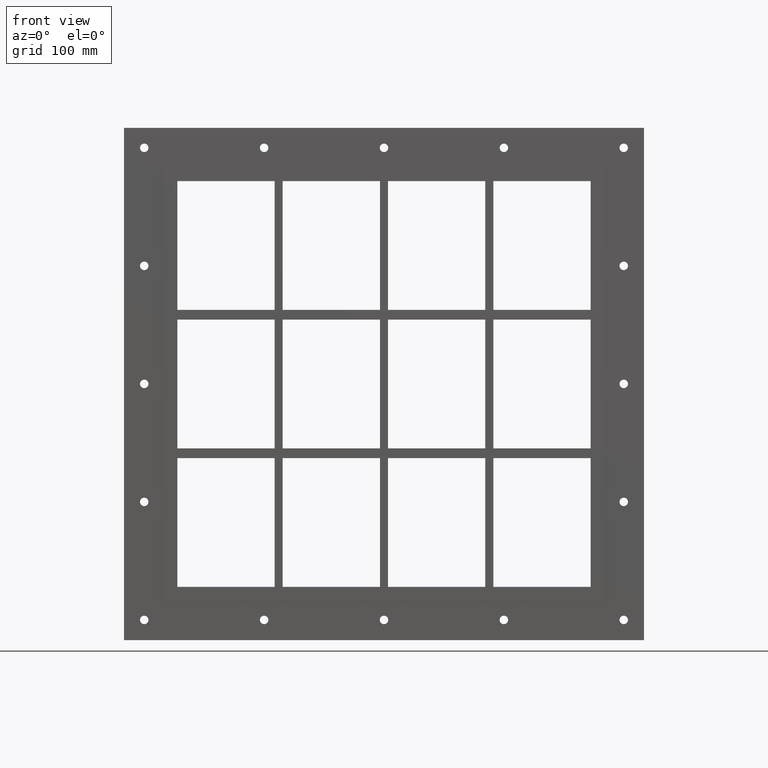
[diagram: clean part render]
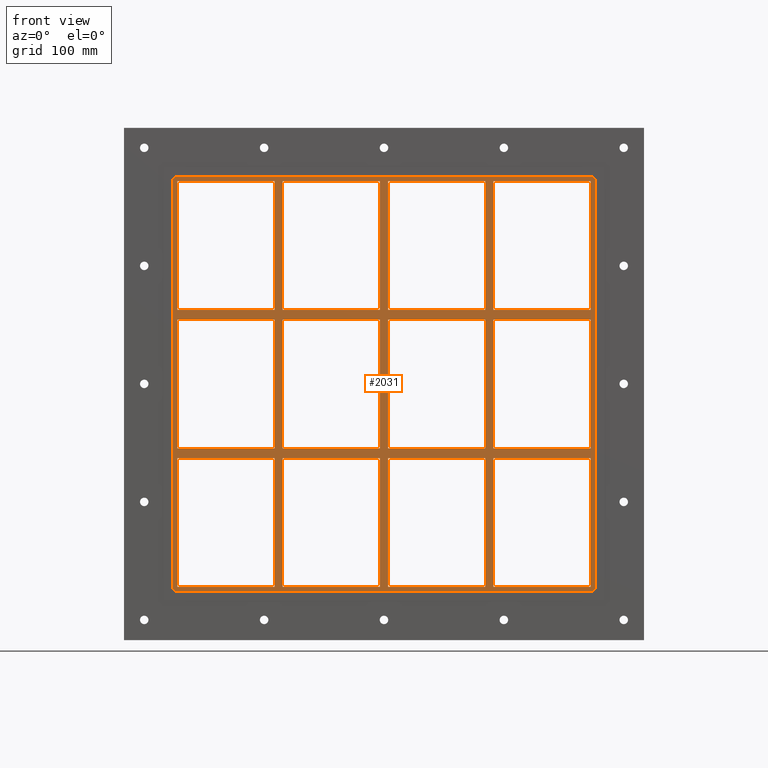
[diagram: same view with one face highlighted and labeled with its STEP entity id]
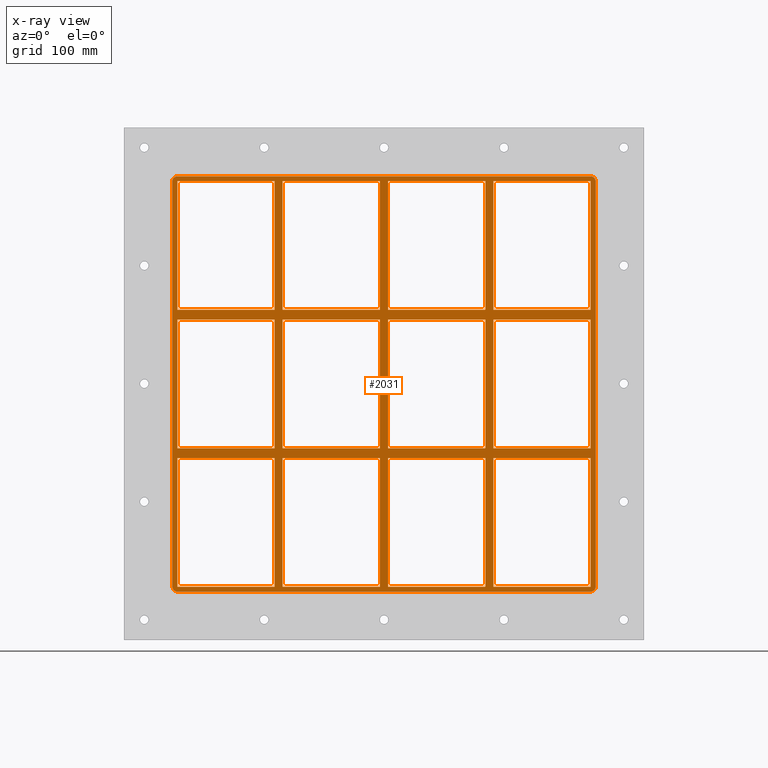
[diagram: x-ray of the same camera — body ghosted, the highlighted face saturated]
A machine part, front view. The second image highlights one B-rep face of the part: STEP entity #2031.
The next image is the same camera in x-ray: the body ghosted, the highlighted face saturated — about 0% of this face is hidden behind the body in this view.
In plain terms, the highlighted planar face has unit normal (0, 1, 0).
Its self-contained STEP definition (entity closure, byte-faithful):
#521=CARTESIAN_POINT('',(-135.50000000000213,-3.0,79.749999999989683));
#522=VERTEX_POINT('',#521);
#531=CARTESIAN_POINT('',(-256.00000000000045,-3.0,79.749999999989683));
#532=VERTEX_POINT('',#531);
#533=CARTESIAN_POINT('',(-135.5000000000021,-3.0,79.749999999989711));
#534=DIRECTION('',(-1.0,0.0,0.0));
#535=VECTOR('',#534,120.49999999999835);
#536=LINE('',#533,#535);
#537=EDGE_CURVE('',#522,#532,#536,.T.);
#561=CARTESIAN_POINT('',(-5.000000000002132,-3.0,79.749999999989754));
#562=VERTEX_POINT('',#561);
#571=CARTESIAN_POINT('',(-125.49999999999272,-3.0,79.749999999989711));
#572=VERTEX_POINT('',#571);
#573=CARTESIAN_POINT('',(-5.00000000000216,-3.0,79.749999999989754));
#574=DIRECTION('',(-1.0,0.0,0.0));
#575=VECTOR('',#574,120.49999999999056);
#576=LINE('',#573,#575);
#577=EDGE_CURVE('',#562,#572,#576,.T.);
#603=CARTESIAN_POINT('',(135.50000000000728,-3.0,79.749999999989797));
#604=VERTEX_POINT('',#603);
#619=CARTESIAN_POINT('',(256.00000000000364,-3.0,79.749999999989839));
#620=VERTEX_POINT('',#619);
#627=CARTESIAN_POINT('',(256.00000000000364,-3.0,79.749999999989839));
#628=DIRECTION('',(-1.0,0.0,0.0));
#629=VECTOR('',#628,120.49999999999636);
#630=LINE('',#627,#629);
#631=EDGE_CURVE('',#620,#604,#630,.T.);
#641=CARTESIAN_POINT('',(125.4999999999979,-3.0,79.749999999989797));
#642=VERTEX_POINT('',#641);
#651=CARTESIAN_POINT('',(5.000000000007283,-3.0,79.749999999989754));
#652=VERTEX_POINT('',#651);
#653=CARTESIAN_POINT('',(125.4999999999979,-3.0,79.749999999989797));
#654=DIRECTION('',(-1.0,0.0,0.0));
#655=VECTOR('',#654,120.49999999999062);
#656=LINE('',#653,#655);
#657=EDGE_CURVE('',#642,#652,#656,.T.);
#683=CARTESIAN_POINT('',(-135.50000000000213,-3.0,91.750000000000085));
#684=VERTEX_POINT('',#683);
#699=CARTESIAN_POINT('',(-256.00000000000045,-3.0,91.750000000000085));
#700=VERTEX_POINT('',#699);
#707=CARTESIAN_POINT('',(-256.00000000000045,-3.0,91.750000000000085));
#708=DIRECTION('',(1.0,0.0,0.0));
#709=VECTOR('',#708,120.49999999999832);
#710=LINE('',#707,#709);
#711=EDGE_CURVE('',#700,#684,#710,.T.);
#721=CARTESIAN_POINT('',(135.50000000000728,-3.0,91.750000000000085));
#722=VERTEX_POINT('',#721);
#731=CARTESIAN_POINT('',(256.00000000000017,-3.0,91.750000000000085));
#732=VERTEX_POINT('',#731);
#733=CARTESIAN_POINT('',(135.50000000000728,-3.0,91.750000000000085));
#734=DIRECTION('',(1.0,0.0,0.0));
#735=VECTOR('',#734,120.49999999999284);
#736=LINE('',#733,#735);
#737=EDGE_CURVE('',#722,#732,#736,.T.);
#763=CARTESIAN_POINT('',(-5.000000000002132,-3.0,91.750000000000085));
#764=VERTEX_POINT('',#763);
#779=CARTESIAN_POINT('',(-125.49999999999272,-3.0,91.750000000000085));
#780=VERTEX_POINT('',#779);
#787=CARTESIAN_POINT('',(-125.49999999999272,-3.0,91.750000000000085));
#788=DIRECTION('',(1.0,0.0,0.0));
#789=VECTOR('',#788,120.49999999999056);
#790=LINE('',#787,#789);
#791=EDGE_CURVE('',#780,#764,#790,.T.);
#803=CARTESIAN_POINT('',(125.49999999999791,-3.0,91.750000000000085));
#804=VERTEX_POINT('',#803);
#819=CARTESIAN_POINT('',(5.000000000007283,-3.0,91.750000000000085));
#820=VERTEX_POINT('',#819);
#827=CARTESIAN_POINT('',(5.000000000007276,-3.0,91.750000000000085));
#828=DIRECTION('',(1.0,0.0,0.0));
#829=VECTOR('',#828,120.49999999999062);
#830=LINE('',#827,#829);
#831=EDGE_CURVE('',#820,#804,#830,.T.);
#850=CARTESIAN_POINT('',(-256.0,-3.0,251.24999999999997));
#851=VERTEX_POINT('',#850);
#858=CARTESIAN_POINT('',(-256.0,-3.0,91.750000000000099));
#859=DIRECTION('',(0.0,0.0,1.0));
#860=VECTOR('',#859,159.49999999999989);
#861=LINE('',#858,#860);
#862=EDGE_CURVE('',#700,#851,#861,.T.);
#881=CARTESIAN_POINT('',(256.00000000000017,-3.0,-79.749999999999943));
#882=VERTEX_POINT('',#881);
#889=CARTESIAN_POINT('',(256.0,-3.0,79.749999999989839));
#890=DIRECTION('',(0.0,0.0,-1.0));
#891=VECTOR('',#890,159.49999999998977);
#892=LINE('',#889,#891);
#893=EDGE_CURVE('',#620,#882,#892,.T.);
#904=CARTESIAN_POINT('',(256.0,-3.0,251.24999999999997));
#905=VERTEX_POINT('',#904);
#906=CARTESIAN_POINT('',(256.0,-3.0,251.24999999999997));
#907=DIRECTION('',(0.0,0.0,-1.0));
#908=VECTOR('',#907,159.49999999999989);
#909=LINE('',#906,#908);
#910=EDGE_CURVE('',#905,#732,#909,.T.);
#935=CARTESIAN_POINT('',(125.49999999999787,-3.0,251.24999999999997));
#936=VERTEX_POINT('',#935);
#937=CARTESIAN_POINT('',(125.49999999999788,-3.0,91.750000000000085));
#938=DIRECTION('',(0.0,0.0,1.0));
#939=VECTOR('',#938,159.49999999999989);
#940=LINE('',#937,#939);
#941=EDGE_CURVE('',#804,#936,#940,.T.);
#974=CARTESIAN_POINT('',(135.50000000000728,-3.0,251.24999999999997));
#975=VERTEX_POINT('',#974);
#982=CARTESIAN_POINT('',(135.50000000000728,-3.0,251.24999999999997));
#983=DIRECTION('',(0.0,0.0,-1.0));
#984=VECTOR('',#983,159.49999999999989);
#985=LINE('',#982,#984);
#986=EDGE_CURVE('',#975,#722,#985,.T.);
#997=CARTESIAN_POINT('',(-5.000000000002132,-3.0,251.24999999999997));
#998=VERTEX_POINT('',#997);
#999=CARTESIAN_POINT('',(-5.00000000000212,-3.0,91.750000000000085));
#1000=DIRECTION('',(0.0,0.0,1.0));
#1001=VECTOR('',#1000,159.49999999999989);
#1002=LINE('',#999,#1001);
#1003=EDGE_CURVE('',#764,#998,#1002,.T.);
#1036=CARTESIAN_POINT('',(5.000000000007283,-3.0,251.24999999999997));
#1037=VERTEX_POINT('',#1036);
#1044=CARTESIAN_POINT('',(5.000000000007283,-3.0,251.24999999999997));
#1045=DIRECTION('',(0.0,0.0,-1.0));
#1046=VECTOR('',#1045,159.49999999999989);
#1047=LINE('',#1044,#1046);
#1048=EDGE_CURVE('',#1037,#820,#1047,.T.);
#1059=CARTESIAN_POINT('',(-135.50000000000213,-3.0,251.24999999999997));
#1060=VERTEX_POINT('',#1059);
#1061=CARTESIAN_POINT('',(-135.50000000000213,-3.0,91.750000000000085));
#1062=DIRECTION('',(0.0,0.0,1.0));
#1063=VECTOR('',#1062,159.49999999999989);
#1064=LINE('',#1061,#1063);
#1065=EDGE_CURVE('',#684,#1060,#1064,.T.);
#1098=CARTESIAN_POINT('',(-135.50000000000213,-3.0,-79.749999999999943));
#1099=VERTEX_POINT('',#1098);
#1106=CARTESIAN_POINT('',(-135.5000000000021,-3.0,-79.749999999999943));
#1107=DIRECTION('',(0.0,0.0,1.0));
#1108=VECTOR('',#1107,159.49999999998963);
#1109=LINE('',#1106,#1108);
#1110=EDGE_CURVE('',#1099,#522,#1109,.T.);
#1129=CARTESIAN_POINT('',(-125.49999999999272,-3.0,251.24999999999997));
#1130=VERTEX_POINT('',#1129);
#1137=CARTESIAN_POINT('',(-125.49999999999272,-3.0,251.24999999999997));
#1138=DIRECTION('',(0.0,0.0,-1.0));
#1139=VECTOR('',#1138,159.49999999999989);
#1140=LINE('',#1137,#1139);
#1141=EDGE_CURVE('',#1130,#780,#1140,.T.);
#1495=CARTESIAN_POINT('',(125.4999999999979,-3.0,-79.749999999999943));
#1496=VERTEX_POINT('',#1495);
#1503=CARTESIAN_POINT('',(125.4999999999979,-3.0,-79.749999999999943));
#1504=DIRECTION('',(0.0,0.0,1.0));
#1505=VECTOR('',#1504,159.4999999999898);
#1506=LINE('',#1503,#1505);
#1507=EDGE_CURVE('',#1496,#642,#1506,.T.);
#1517=CARTESIAN_POINT('',(125.4999999999979,-3.0,-91.750000000010218));
#1518=VERTEX_POINT('',#1517);
#1526=CARTESIAN_POINT('',(125.49999999999791,-3.0,-251.25000000000003));
#1527=VERTEX_POINT('',#1526);
#1534=CARTESIAN_POINT('',(125.49999999999791,-3.0,-251.25000000000003));
#1535=DIRECTION('',(0.0,0.0,1.0));
#1536=VECTOR('',#1535,159.49999999998983);
#1537=LINE('',#1534,#1536);
#1538=EDGE_CURVE('',#1527,#1518,#1537,.T.);
#1549=CARTESIAN_POINT('',(135.50000000000728,-3.0,-79.749999999999972));
#1550=VERTEX_POINT('',#1549);
#1551=CARTESIAN_POINT('',(135.50000000000728,-3.0,79.749999999989825));
#1552=DIRECTION('',(0.0,0.0,-1.0));
#1553=VECTOR('',#1552,159.4999999999898);
#1554=LINE('',#1551,#1553);
#1555=EDGE_CURVE('',#604,#1550,#1554,.T.);
#1572=CARTESIAN_POINT('',(135.50000000000728,-3.0,-91.750000000010232));
#1573=VERTEX_POINT('',#1572);
#1580=CARTESIAN_POINT('',(135.50000000000728,-3.0,-251.2499999999865));
#1581=VERTEX_POINT('',#1580);
#1582=CARTESIAN_POINT('',(135.50000000000728,-3.0,-91.75000000001026));
#1583=DIRECTION('',(0.0,0.0,-1.0));
#1584=VECTOR('',#1583,159.49999999997624);
#1585=LINE('',#1582,#1584);
#1586=EDGE_CURVE('',#1573,#1581,#1585,.T.);
#1605=CARTESIAN_POINT('',(-5.000000000002109,-3.0,-79.749999999999943));
#1606=VERTEX_POINT('',#1605);
#1613=CARTESIAN_POINT('',(-5.000000000002109,-3.0,-79.749999999999943));
#1614=DIRECTION('',(0.0,0.0,1.0));
#1615=VECTOR('',#1614,159.49999999998968);
#1616=LINE('',#1613,#1615);
#1617=EDGE_CURVE('',#1606,#562,#1616,.T.);
#1627=CARTESIAN_POINT('',(-5.000000000002107,-3.0,-91.750000000010274));
#1628=VERTEX_POINT('',#1627);
#1636=CARTESIAN_POINT('',(-5.000000000002096,-3.0,-251.25000000000003));
#1637=VERTEX_POINT('',#1636);
#1644=CARTESIAN_POINT('',(-5.000000000002096,-3.0,-251.25000000000003));
#1645=DIRECTION('',(0.0,0.0,1.0));
#1646=VECTOR('',#1645,159.49999999998977);
#1647=LINE('',#1644,#1646);
#1648=EDGE_CURVE('',#1637,#1628,#1647,.T.);
#1659=CARTESIAN_POINT('',(5.000000000007283,-3.0,-79.749999999999972));
#1660=VERTEX_POINT('',#1659);
#1661=CARTESIAN_POINT('',(5.000000000007283,-3.0,79.74999999998974));
#1662=DIRECTION('',(0.0,0.0,-1.0));
#1663=VECTOR('',#1662,159.49999999998971);
#1664=LINE('',#1661,#1663);
#1665=EDGE_CURVE('',#652,#1660,#1664,.T.);
#1682=CARTESIAN_POINT('',(5.000000000007283,-3.0,-91.750000000010232));
#1683=VERTEX_POINT('',#1682);
#1690=CARTESIAN_POINT('',(5.000000000007283,-3.0,-251.2499999999865));
#1691=VERTEX_POINT('',#1690);
#1692=CARTESIAN_POINT('',(5.000000000007283,-3.0,-91.75000000001026));
#1693=DIRECTION('',(0.0,0.0,-1.0));
#1694=VECTOR('',#1693,159.49999999997624);
#1695=LINE('',#1692,#1694);
#1696=EDGE_CURVE('',#1683,#1691,#1695,.T.);
#1715=CARTESIAN_POINT('',(-125.49999999999272,-3.0,-251.2499999999865));
#1716=VERTEX_POINT('',#1715);
#1723=CARTESIAN_POINT('',(-5.000000000002103,-3.0,-251.25000000000003));
#1724=DIRECTION('',(-1.0,0.0,0.0));
#1725=VECTOR('',#1724,120.49999999999062);
#1726=LINE('',#1723,#1725);
#1727=EDGE_CURVE('',#1637,#1716,#1726,.T.);
#1740=CARTESIAN_POINT('',(125.4999999999979,-3.0,-251.25000000000003));
#1741=DIRECTION('',(-1.0,0.0,0.0));
#1742=VECTOR('',#1741,120.49999999999062);
#1743=LINE('',#1740,#1742);
#1744=EDGE_CURVE('',#1527,#1691,#1743,.T.);
#1755=CARTESIAN_POINT('',(256.0,-3.0,-251.25000000000003));
#1756=VERTEX_POINT('',#1755);
#1757=CARTESIAN_POINT('',(256.0,-3.0,-251.25000000000003));
#1758=DIRECTION('',(-1.0,0.0,0.0));
#1759=VECTOR('',#1758,120.49999999999272);
#1760=LINE('',#1757,#1759);
#1761=EDGE_CURVE('',#1756,#1581,#1760,.T.);
#1773=CARTESIAN_POINT('',(0.0,-3.0,0.0));
#1774=DIRECTION('',(0.0,1.0,0.0));
#1775=DIRECTION('',(0.0,0.0,1.0));
#1776=AXIS2_PLACEMENT_3D('',#1773,#1774,#1775);
#1777=PLANE('',#1776);
#1778=CARTESIAN_POINT('',(262.0,-3.0,-251.25));
#1779=VERTEX_POINT('',#1778);
#1780=CARTESIAN_POINT('',(256.0,-3.0,-257.25));
#1781=VERTEX_POINT('',#1780);
#1782=CARTESIAN_POINT('',(256.0,-3.0,-251.25));
#1783=DIRECTION('',(0.0,1.0,0.0));
#1784=DIRECTION('',(0.707106781186548,0.0,-0.707106781186548));
#1785=AXIS2_PLACEMENT_3D('',#1782,#1783,#1784);
#1786=CIRCLE('',#1785,6.000000000000002);
#1787=EDGE_CURVE('',#1779,#1781,#1786,.T.);
#1788=ORIENTED_EDGE('',*,*,#1787,.F.);
#1789=CARTESIAN_POINT('',(262.0,-3.0,251.25));
#1790=VERTEX_POINT('',#1789);
#1791=CARTESIAN_POINT('',(262.0,-3.0,-251.25));
#1792=DIRECTION('',(0.0,0.0,1.0));
#1793=VECTOR('',#1792,502.5);
#1794=LINE('',#1791,#1793);
#1795=EDGE_CURVE('',#1779,#1790,#1794,.T.);
#1796=ORIENTED_EDGE('',*,*,#1795,.T.);
#1797=CARTESIAN_POINT('',(256.0,-3.0,257.25));
#1798=VERTEX_POINT('',#1797);
#1799=CARTESIAN_POINT('',(256.0,-3.0,251.25));
#1800=DIRECTION('',(0.0,1.0,0.0));
#1801=DIRECTION('',(0.707106781186548,0.0,0.707106781186548));
#1802=AXIS2_PLACEMENT_3D('',#1799,#1800,#1801);
#1803=CIRCLE('',#1802,6.000000000000002);
#1804=EDGE_CURVE('',#1798,#1790,#1803,.T.);
#1805=ORIENTED_EDGE('',*,*,#1804,.F.);
#1806=CARTESIAN_POINT('',(-256.0,-3.0,257.25));
#1807=VERTEX_POINT('',#1806);
#1808=CARTESIAN_POINT('',(256.0,-3.0,257.25));
#1809=DIRECTION('',(-1.0,0.0,0.0));
#1810=VECTOR('',#1809,512.0);
#1811=LINE('',#1808,#1810);
#1812=EDGE_CURVE('',#1798,#1807,#1811,.T.);
#1813=ORIENTED_EDGE('',*,*,#1812,.T.);
#1814=CARTESIAN_POINT('',(-262.0,-3.0,251.25));
#1815=VERTEX_POINT('',#1814);
#1816=CARTESIAN_POINT('',(-256.0,-3.0,251.25));
#1817=DIRECTION('',(0.0,1.0,0.0));
#1818=DIRECTION('',(-0.707106781186548,0.0,0.707106781186548));
#1819=AXIS2_PLACEMENT_3D('',#1816,#1817,#1818);
#1820=CIRCLE('',#1819,6.000000000000002);
#1821=EDGE_CURVE('',#1815,#1807,#1820,.T.);
#1822=ORIENTED_EDGE('',*,*,#1821,.F.);
#1823=CARTESIAN_POINT('',(-262.0,-3.0,-251.25));
#1824=VERTEX_POINT('',#1823);
#1825=CARTESIAN_POINT('',(-262.0,-3.0,251.25));
#1826=DIRECTION('',(0.0,0.0,-1.0));
#1827=VECTOR('',#1826,502.5);
#1828=LINE('',#1825,#1827);
#1829=EDGE_CURVE('',#1815,#1824,#1828,.T.);
#1830=ORIENTED_EDGE('',*,*,#1829,.T.);
#1831=CARTESIAN_POINT('',(-256.0,-3.0,-257.25));
#1832=VERTEX_POINT('',#1831);
#1833=CARTESIAN_POINT('',(-256.0,-3.0,-251.25));
#1834=DIRECTION('',(0.0,1.0,0.0));
#1835=DIRECTION('',(-0.707106781186548,0.0,-0.707106781186548));
#1836=AXIS2_PLACEMENT_3D('',#1833,#1834,#1835);
#1837=CIRCLE('',#1836,6.000000000000002);
#1838=EDGE_CURVE('',#1832,#1824,#1837,.T.);
#1839=ORIENTED_EDGE('',*,*,#1838,.F.);
#1840=CARTESIAN_POINT('',(-256.0,-3.0,-257.25));
#1841=DIRECTION('',(1.0,0.0,0.0));
#1842=VECTOR('',#1841,512.0);
#1843=LINE('',#1840,#1842);
#1844=EDGE_CURVE('',#1832,#1781,#1843,.T.);
#1845=ORIENTED_EDGE('',*,*,#1844,.T.);
#1846=EDGE_LOOP('',(#1788,#1796,#1805,#1813,#1822,#1830,#1839,#1845));
#1847=FACE_OUTER_BOUND('',#1846,.T.);
#1848=ORIENTED_EDGE('',*,*,#862,.T.);
#1849=CARTESIAN_POINT('',(-256.0,-3.0,251.25));
#1850=DIRECTION('',(1.0,0.0,0.0));
#1851=VECTOR('',#1850,120.49999999999787);
#1852=LINE('',#1849,#1851);
#1853=EDGE_CURVE('',#851,#1060,#1852,.T.);
#1854=ORIENTED_EDGE('',*,*,#1853,.T.);
#1855=ORIENTED_EDGE('',*,*,#1065,.F.);
#1856=ORIENTED_EDGE('',*,*,#711,.F.);
#1857=EDGE_LOOP('',(#1848,#1854,#1855,#1856));
#1858=FACE_BOUND('',#1857,.T.);
#1859=ORIENTED_EDGE('',*,*,#893,.T.);
#1860=CARTESIAN_POINT('',(135.50000000000728,-3.0,-79.749999999999943));
#1861=DIRECTION('',(1.0,0.0,0.0));
#1862=VECTOR('',#1861,120.49999999999284);
#1863=LINE('',#1860,#1862);
#1864=EDGE_CURVE('',#1550,#882,#1863,.T.);
#1865=ORIENTED_EDGE('',*,*,#1864,.F.);
#1866=ORIENTED_EDGE('',*,*,#1555,.F.);
#1867=ORIENTED_EDGE('',*,*,#631,.F.);
#1868=EDGE_LOOP('',(#1859,#1865,#1866,#1867));
#1869=FACE_BOUND('',#1868,.T.);
#1870=ORIENTED_EDGE('',*,*,#1507,.F.);
#1871=CARTESIAN_POINT('',(5.000000000007276,-3.0,-79.749999999999943));
#1872=DIRECTION('',(1.0,0.0,0.0));
#1873=VECTOR('',#1872,120.49999999999062);
#1874=LINE('',#1871,#1873);
#1875=EDGE_CURVE('',#1660,#1496,#1874,.T.);
#1876=ORIENTED_EDGE('',*,*,#1875,.F.);
#1877=ORIENTED_EDGE('',*,*,#1665,.F.);
#1878=ORIENTED_EDGE('',*,*,#657,.F.);
#1879=EDGE_LOOP('',(#1870,#1876,#1877,#1878));
#1880=FACE_BOUND('',#1879,.T.);
#1881=ORIENTED_EDGE('',*,*,#1617,.F.);
#1882=CARTESIAN_POINT('',(-125.49999999999272,-3.0,-79.749999999999943));
#1883=VERTEX_POINT('',#1882);
#1884=CARTESIAN_POINT('',(-125.49999999999272,-3.0,-79.749999999999943));
#1885=DIRECTION('',(1.0,0.0,0.0));
#1886=VECTOR('',#1885,120.49999999999062);
#1887=LINE('',#1884,#1886);
#1888=EDGE_CURVE('',#1883,#1606,#1887,.T.);
#1889=ORIENTED_EDGE('',*,*,#1888,.F.);
#1890=CARTESIAN_POINT('',(-125.49999999999272,-3.0,79.749999999989711));
#1891=DIRECTION('',(0.0,0.0,-1.0));
#1892=VECTOR('',#1891,159.49999999998968);
#1893=LINE('',#1890,#1892);
#1894=EDGE_CURVE('',#572,#1883,#1893,.T.);
#1895=ORIENTED_EDGE('',*,*,#1894,.F.);
#1896=ORIENTED_EDGE('',*,*,#577,.F.);
#1897=EDGE_LOOP('',(#1881,#1889,#1895,#1896));
#1898=FACE_BOUND('',#1897,.T.);
#1899=ORIENTED_EDGE('',*,*,#831,.F.);
#1900=ORIENTED_EDGE('',*,*,#1048,.F.);
#1901=CARTESIAN_POINT('',(5.000000000007276,-3.0,251.25));
#1902=DIRECTION('',(1.0,0.0,0.0));
#1903=VECTOR('',#1902,120.49999999999062);
#1904=LINE('',#1901,#1903);
#1905=EDGE_CURVE('',#1037,#936,#1904,.T.);
#1906=ORIENTED_EDGE('',*,*,#1905,.T.);
#1907=ORIENTED_EDGE('',*,*,#941,.F.);
#1908=EDGE_LOOP('',(#1899,#1900,#1906,#1907));
#1909=FACE_BOUND('',#1908,.T.);
#1910=ORIENTED_EDGE('',*,*,#791,.F.);
#1911=ORIENTED_EDGE('',*,*,#1141,.F.);
#1912=CARTESIAN_POINT('',(-125.49999999999272,-3.0,251.25));
#1913=DIRECTION('',(1.0,0.0,0.0));
#1914=VECTOR('',#1913,120.49999999999059);
#1915=LINE('',#1912,#1914);
#1916=EDGE_CURVE('',#1130,#998,#1915,.T.);
#1917=ORIENTED_EDGE('',*,*,#1916,.T.);
#1918=ORIENTED_EDGE('',*,*,#1003,.F.);
#1919=EDGE_LOOP('',(#1910,#1911,#1917,#1918));
#1920=FACE_BOUND('',#1919,.T.);
#1921=ORIENTED_EDGE('',*,*,#537,.F.);
#1922=ORIENTED_EDGE('',*,*,#1110,.F.);
#1923=CARTESIAN_POINT('',(-256.00000000000045,-3.0,-79.749999999999943));
#1924=VERTEX_POINT('',#1923);
#1925=CARTESIAN_POINT('',(-256.00000000000045,-3.0,-79.749999999999943));
#1926=DIRECTION('',(1.0,0.0,0.0));
#1927=VECTOR('',#1926,120.49999999999832);
#1928=LINE('',#1925,#1927);
#1929=EDGE_CURVE('',#1924,#1099,#1928,.T.);
#1930=ORIENTED_EDGE('',*,*,#1929,.F.);
#1931=CARTESIAN_POINT('',(-256.0,-3.0,-79.749999999999943));
#1932=DIRECTION('',(0.0,0.0,1.0));
#1933=VECTOR('',#1932,159.49999999998965);
#1934=LINE('',#1931,#1933);
#1935=EDGE_CURVE('',#1924,#532,#1934,.T.);
#1936=ORIENTED_EDGE('',*,*,#1935,.T.);
#1937=EDGE_LOOP('',(#1921,#1922,#1930,#1936));
#1938=FACE_BOUND('',#1937,.T.);
#1939=ORIENTED_EDGE('',*,*,#737,.F.);
#1940=ORIENTED_EDGE('',*,*,#986,.F.);
#1941=CARTESIAN_POINT('',(135.50000000000728,-3.0,251.25));
#1942=DIRECTION('',(1.0,0.0,0.0));
#1943=VECTOR('',#1942,120.49999999999278);
#1944=LINE('',#1941,#1943);
#1945=EDGE_CURVE('',#975,#905,#1944,.T.);
#1946=ORIENTED_EDGE('',*,*,#1945,.T.);
#1947=ORIENTED_EDGE('',*,*,#910,.T.);
#1948=EDGE_LOOP('',(#1939,#1940,#1946,#1947));
#1949=FACE_BOUND('',#1948,.T.);
#1950=ORIENTED_EDGE('',*,*,#1744,.T.);
#1951=ORIENTED_EDGE('',*,*,#1696,.F.);
#1952=CARTESIAN_POINT('',(125.4999999999979,-3.0,-91.750000000010232));
#1953=DIRECTION('',(-1.0,0.0,0.0));
#1954=VECTOR('',#1953,120.49999999999062);
#1955=LINE('',#1952,#1954);
#1956=EDGE_CURVE('',#1518,#1683,#1955,.T.);
#1957=ORIENTED_EDGE('',*,*,#1956,.F.);
#1958=ORIENTED_EDGE('',*,*,#1538,.F.);
#1959=EDGE_LOOP('',(#1950,#1951,#1957,#1958));
#1960=FACE_BOUND('',#1959,.T.);
#1961=ORIENTED_EDGE('',*,*,#1727,.T.);
#1962=CARTESIAN_POINT('',(-125.49999999999272,-3.0,-91.750000000010317));
#1963=VERTEX_POINT('',#1962);
#1964=CARTESIAN_POINT('',(-125.49999999999272,-3.0,-91.750000000010317));
#1965=DIRECTION('',(0.0,0.0,-1.0));
#1966=VECTOR('',#1965,159.49999999997618);
#1967=LINE('',#1964,#1966);
#1968=EDGE_CURVE('',#1963,#1716,#1967,.T.);
#1969=ORIENTED_EDGE('',*,*,#1968,.F.);
#1970=CARTESIAN_POINT('',(-5.000000000002103,-3.0,-91.750000000010274));
#1971=DIRECTION('',(-1.0,0.0,0.0));
#1972=VECTOR('',#1971,120.49999999999062);
#1973=LINE('',#1970,#1972);
#1974=EDGE_CURVE('',#1628,#1963,#1973,.T.);
#1975=ORIENTED_EDGE('',*,*,#1974,.F.);
#1976=ORIENTED_EDGE('',*,*,#1648,.F.);
#1977=EDGE_LOOP('',(#1961,#1969,#1975,#1976));
#1978=FACE_BOUND('',#1977,.T.);
#1979=ORIENTED_EDGE('',*,*,#1586,.F.);
#1980=CARTESIAN_POINT('',(256.00000000000364,-3.0,-91.750000000010189));
#1981=VERTEX_POINT('',#1980);
#1982=CARTESIAN_POINT('',(256.00000000000364,-3.0,-91.750000000010189));
#1983=DIRECTION('',(-1.0,0.0,0.0));
#1984=VECTOR('',#1983,120.49999999999636);
#1985=LINE('',#1982,#1984);
#1986=EDGE_CURVE('',#1981,#1573,#1985,.T.);
#1987=ORIENTED_EDGE('',*,*,#1986,.F.);
#1988=CARTESIAN_POINT('',(256.0,-3.0,-91.750000000010203));
#1989=DIRECTION('',(0.0,0.0,-1.0));
#1990=VECTOR('',#1989,159.4999999999898);
#1991=LINE('',#1988,#1990);
#1992=EDGE_CURVE('',#1981,#1756,#1991,.T.);
#1993=ORIENTED_EDGE('',*,*,#1992,.T.);
#1994=ORIENTED_EDGE('',*,*,#1761,.T.);
#1995=EDGE_LOOP('',(#1979,#1987,#1993,#1994));
#1996=FACE_BOUND('',#1995,.T.);
#1997=CARTESIAN_POINT('',(-135.5000000000021,-3.0,-91.750000000010317));
#1998=VERTEX_POINT('',#1997);
#1999=CARTESIAN_POINT('',(-256.00000000000045,-3.0,-91.750000000010346));
#2000=VERTEX_POINT('',#1999);
#2001=CARTESIAN_POINT('',(-135.5000000000021,-3.0,-91.750000000010317));
#2002=DIRECTION('',(-1.0,0.0,0.0));
#2003=VECTOR('',#2002,120.49999999999835);
#2004=LINE('',#2001,#2003);
#2005=EDGE_CURVE('',#1998,#2000,#2004,.T.);
#2006=ORIENTED_EDGE('',*,*,#2005,.F.);
#2007=CARTESIAN_POINT('',(-135.5000000000021,-3.0,-251.25000000000003));
#2008=VERTEX_POINT('',#2007);
#2009=CARTESIAN_POINT('',(-135.5000000000021,-3.0,-251.25000000000003));
#2010=DIRECTION('',(0.0,0.0,1.0));
#2011=VECTOR('',#2010,159.49999999998971);
#2012=LINE('',#2009,#2011);
#2013=EDGE_CURVE('',#2008,#1998,#2012,.T.);
#2014=ORIENTED_EDGE('',*,*,#2013,.F.);
#2015=CARTESIAN_POINT('',(-256.0,-3.0,-251.25000000000003));
#2016=VERTEX_POINT('',#2015);
#2017=CARTESIAN_POINT('',(-135.5000000000021,-3.0,-251.25000000000003));
#2018=DIRECTION('',(-1.0,0.0,0.0));
#2019=VECTOR('',#2018,120.49999999999795);
#2020=LINE('',#2017,#2019);
#2021=EDGE_CURVE('',#2008,#2016,#2020,.T.);
#2022=ORIENTED_EDGE('',*,*,#2021,.T.);
#2023=CARTESIAN_POINT('',(-256.0,-3.0,-251.25000000000003));
#2024=DIRECTION('',(0.0,0.0,1.0));
#2025=VECTOR('',#2024,159.49999999998968);
#2026=LINE('',#2023,#2025);
#2027=EDGE_CURVE('',#2016,#2000,#2026,.T.);
#2028=ORIENTED_EDGE('',*,*,#2027,.T.);
#2029=EDGE_LOOP('',(#2006,#2014,#2022,#2028));
#2030=FACE_BOUND('',#2029,.T.);
#2031=ADVANCED_FACE('',(#1847,#1858,#1869,#1880,#1898,#1909,#1920,#1938,#1949,#1960,#1978,#1996,#2030),#1777,.F.);